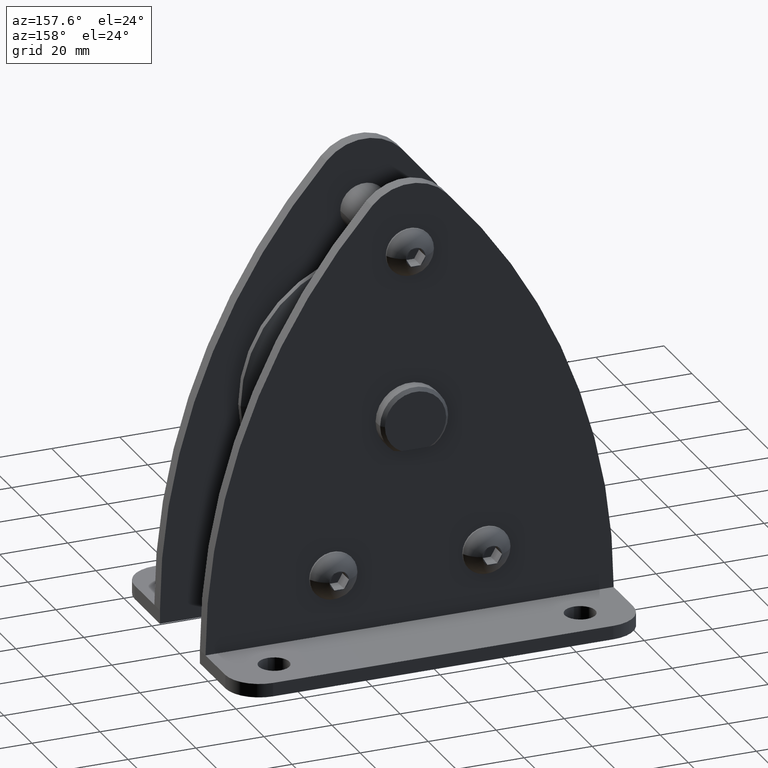
[diagram: clean part render]
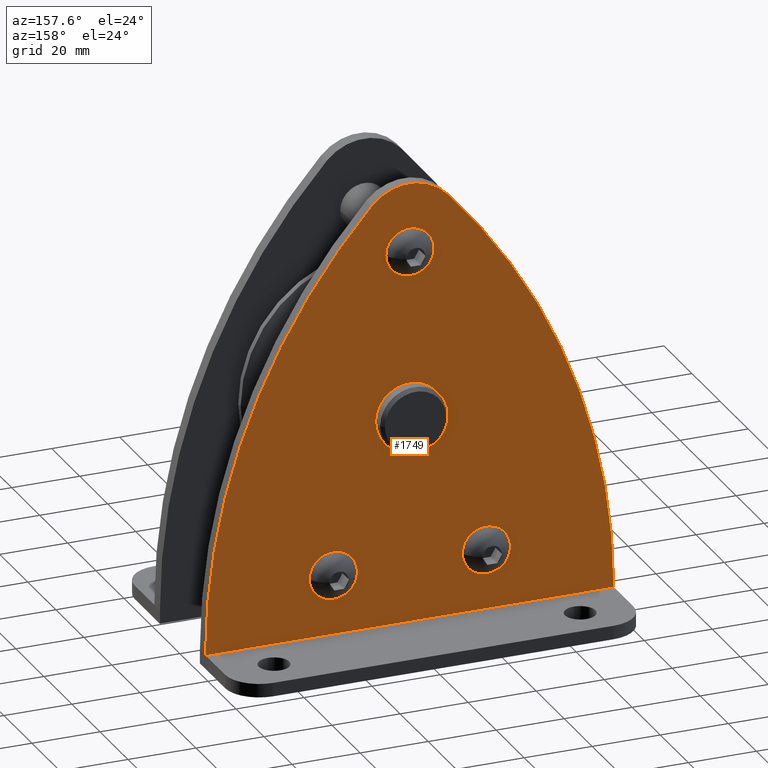
[diagram: same view with one face highlighted and labeled with its STEP entity id]
A machine part, auxiliary view. The second image highlights one B-rep face of the part: STEP entity #1749.
In plain terms, the highlighted planar face has unit normal (0, 1, 0).
Its self-contained STEP definition (entity closure, byte-faithful):
#1749=ADVANCED_FACE('',(#3677,#3678,#3679,#3680,#3681),#3682,.T.);
#3677=FACE_BOUND('',#5747,.T.);
#3678=FACE_BOUND('',#5748,.T.);
#3679=FACE_BOUND('',#5749,.T.);
#3680=FACE_OUTER_BOUND('',#5750,.T.);
#3681=FACE_BOUND('',#5751,.T.);
#3682=PLANE('',#5752);
#5747=EDGE_LOOP('',(#11307,#11308));
#5748=EDGE_LOOP('',(#11309,#11310));
#5749=EDGE_LOOP('',(#11311,#11312));
#5750=EDGE_LOOP('',(#11313,#11314,#11315,#11316));
#5751=EDGE_LOOP('',(#11317,#11318,#11319,#11320));
#5752=AXIS2_PLACEMENT_3D('',#11321,#11322,#11323);
#11307=ORIENTED_EDGE('',*,*,#12465,.T.);
#11308=ORIENTED_EDGE('',*,*,#14440,.T.);
#11309=ORIENTED_EDGE('',*,*,#12914,.T.);
#11310=ORIENTED_EDGE('',*,*,#14104,.T.);
#11311=ORIENTED_EDGE('',*,*,#12482,.T.);
#11312=ORIENTED_EDGE('',*,*,#14441,.T.);
#11313=ORIENTED_EDGE('',*,*,#14442,.T.);
#11314=ORIENTED_EDGE('',*,*,#14443,.F.);
#11315=ORIENTED_EDGE('',*,*,#14444,.F.);
#11316=ORIENTED_EDGE('',*,*,#14445,.F.);
#11317=ORIENTED_EDGE('',*,*,#14209,.T.);
#11318=ORIENTED_EDGE('',*,*,#12875,.T.);
#11319=ORIENTED_EDGE('',*,*,#12872,.T.);
#11320=ORIENTED_EDGE('',*,*,#14200,.T.);
#11321=CARTESIAN_POINT('',(8.32556246166405E-013,18.25,-12.6317308560556));
#11322=DIRECTION('',(0.0,1.0,0.0));
#11323=DIRECTION('',(-1.0,0.0,0.0));
#12465=EDGE_CURVE('',#14991,#14993,#14995,.T.);
#12482=EDGE_CURVE('',#15022,#15024,#15026,.T.);
#12872=EDGE_CURVE('',#15673,#15675,#15677,.T.);
#12875=EDGE_CURVE('',#15679,#15673,#15681,.T.);
#12914=EDGE_CURVE('',#15746,#15750,#15752,.T.);
#14104=EDGE_CURVE('',#15750,#15746,#17521,.T.);
#14200=EDGE_CURVE('',#15675,#17649,#17650,.T.);
#14209=EDGE_CURVE('',#17649,#15679,#17663,.T.);
#14440=EDGE_CURVE('',#14993,#14991,#17926,.T.);
#14441=EDGE_CURVE('',#15024,#15022,#17927,.T.);
#14442=EDGE_CURVE('',#17928,#17929,#17930,.T.);
#14443=EDGE_CURVE('',#17931,#17929,#17932,.T.);
#14444=EDGE_CURVE('',#17933,#17931,#17934,.T.);
#14445=EDGE_CURVE('',#17928,#17933,#17935,.T.);
#14991=VERTEX_POINT('',#19461);
#14993=VERTEX_POINT('',#19464);
#14995=CIRCLE('',#19467,7.0);
#15022=VERTEX_POINT('',#19512);
#15024=VERTEX_POINT('',#19515);
#15026=CIRCLE('',#19518,7.0);
#15673=VERTEX_POINT('',#21922);
#15675=VERTEX_POINT('',#21925);
#15677=CIRCLE('',#21928,10.0);
#15679=VERTEX_POINT('',#21930);
#15681=CIRCLE('',#21933,10.0);
#15746=VERTEX_POINT('',#22038);
#15750=VERTEX_POINT('',#22043);
#15752=CIRCLE('',#22046,7.0);
#17521=CIRCLE('',#24480,7.0);
#17649=VERTEX_POINT('',#24694);
#17650=LINE('',#24695,#24696);
#17663=CIRCLE('',#24723,10.0);
#17926=CIRCLE('',#25839,7.0);
#17927=CIRCLE('',#25840,7.0);
#17928=VERTEX_POINT('',#25841);
#17929=VERTEX_POINT('',#25842);
#17930=LINE('',#25843,#25844);
#17931=VERTEX_POINT('',#25845);
#17932=CIRCLE('',#25846,184.9999999343);
#17933=VERTEX_POINT('',#25847);
#17934=CIRCLE('',#25848,14.9999999822);
#17935=CIRCLE('',#25849,184.9999999343);
#19461=CARTESIAN_POINT('',(-15.5,18.25,-43.5));
#19464=CARTESIAN_POINT('',(-29.5,18.25,-43.5));
#19467=AXIS2_PLACEMENT_3D('',#26648,#26649,#26650);
#19512=CARTESIAN_POINT('',(7.0,18.25,49.0));
#19515=CARTESIAN_POINT('',(-7.0,18.25,49.0));
#19518=AXIS2_PLACEMENT_3D('',#26671,#26672,#26673);
#21922=CARTESIAN_POINT('',(-10.0,18.25,1.22464679914735E-015));
#21925=CARTESIAN_POINT('',(-6.0,18.25,-8.0));
#21928=AXIS2_PLACEMENT_3D('',#27202,#27203,#27204);
#21930=CARTESIAN_POINT('',(10.0,18.25,-1.22464679914735E-015));
#21933=AXIS2_PLACEMENT_3D('',#27206,#27207,#27208);
#22038=CARTESIAN_POINT('',(29.5,18.25,-43.5));
#22043=CARTESIAN_POINT('',(15.5,18.25,-43.5));
#22046=AXIS2_PLACEMENT_3D('',#27260,#27261,#27262);
#24480=AXIS2_PLACEMENT_3D('',#28588,#28589,#28590);
#24694=CARTESIAN_POINT('',(6.0,18.25,-8.0));
#24695=CARTESIAN_POINT('',(0.0,18.25,-8.0));
#24696=VECTOR('',#28656,1.0);
#24723=AXIS2_PLACEMENT_3D('',#28662,#28663,#28664);
#25839=AXIS2_PLACEMENT_3D('',#28881,#28882,#28883);
#25840=AXIS2_PLACEMENT_3D('',#28884,#28885,#28886);
#25841=CARTESIAN_POINT('',(60.00000927,18.25,-60.9999999999251));
#25842=CARTESIAN_POINT('',(-60.00000927,18.25,-61.0));
#25843=CARTESIAN_POINT('',(4.12114786740858E-013,18.25,-61.0));
#25844=VECTOR('',#28887,1.0);
#25845=CARTESIAN_POINT('',(-11.029411760013,18.25,64.3834085300156));
#25846=AXIS2_PLACEMENT_3D('',#28888,#28889,#28890);
#25847=CARTESIAN_POINT('',(11.029411759994,18.25,64.383408530004));
#25848=AXIS2_PLACEMENT_3D('',#28891,#28892,#28893);
#25849=AXIS2_PLACEMENT_3D('',#28894,#28895,#28896);
#26648=CARTESIAN_POINT('',(-22.5,18.25,-43.5));
#26649=DIRECTION('',(0.0,-1.0,0.0));
#26650=DIRECTION('',(1.0,0.0,0.0));
#26671=CARTESIAN_POINT('',(0.0,18.25,49.0));
#26672=DIRECTION('',(0.0,-1.0,0.0));
#26673=DIRECTION('',(1.0,0.0,0.0));
#27202=CARTESIAN_POINT('',(0.0,18.25,0.0));
#27203=DIRECTION('',(-0.0,-1.0,-0.0));
#27204=DIRECTION('',(-1.0,0.0,0.0));
#27206=CARTESIAN_POINT('',(0.0,18.25,0.0));
#27207=DIRECTION('',(-0.0,-1.0,-0.0));
#27208=DIRECTION('',(-1.0,0.0,0.0));
#27260=CARTESIAN_POINT('',(22.5,18.25,-43.5));
#27261=DIRECTION('',(0.0,-1.0,0.0));
#27262=DIRECTION('',(1.0,0.0,0.0));
#28588=CARTESIAN_POINT('',(22.5,18.25,-43.5));
#28589=DIRECTION('',(0.0,-1.0,0.0));
#28590=DIRECTION('',(1.0,0.0,0.0));
#28656=DIRECTION('',(1.0,0.0,0.0));
#28662=CARTESIAN_POINT('',(0.0,18.25,0.0));
#28663=DIRECTION('',(-0.0,-1.0,-0.0));
#28664=DIRECTION('',(-1.0,0.0,0.0));
#28881=CARTESIAN_POINT('',(-22.5,18.25,-43.5));
#28882=DIRECTION('',(0.0,-1.0,0.0));
#28883=DIRECTION('',(1.0,0.0,0.0));
#28884=CARTESIAN_POINT('',(0.0,18.25,49.0));
#28885=DIRECTION('',(0.0,-1.0,0.0));
#28886=DIRECTION('',(1.0,0.0,0.0));
#28887=DIRECTION('',(-1.0,0.0,0.0));
#28888=CARTESIAN_POINT('',(124.9999999343,18.25,-60.9999999808002));
#28889=DIRECTION('',(0.0,-1.0,-0.0));
#28890=DIRECTION('',(-1.0,0.0,-1.02973620057834E-010));
#28891=CARTESIAN_POINT('',(-5.32907051820075E-015,18.25,54.2171862378));
#28892=DIRECTION('',(0.0,-1.0,0.0));
#28893=DIRECTION('',(-0.735294118205483,0.0,0.677748153617862));
#28894=CARTESIAN_POINT('',(-124.9999999343,18.25,-60.9999999807998));
#28895=DIRECTION('',(0.0,-1.0,0.0));
#28896=DIRECTION('',(0.735294117527686,0.0,0.67774815435321));